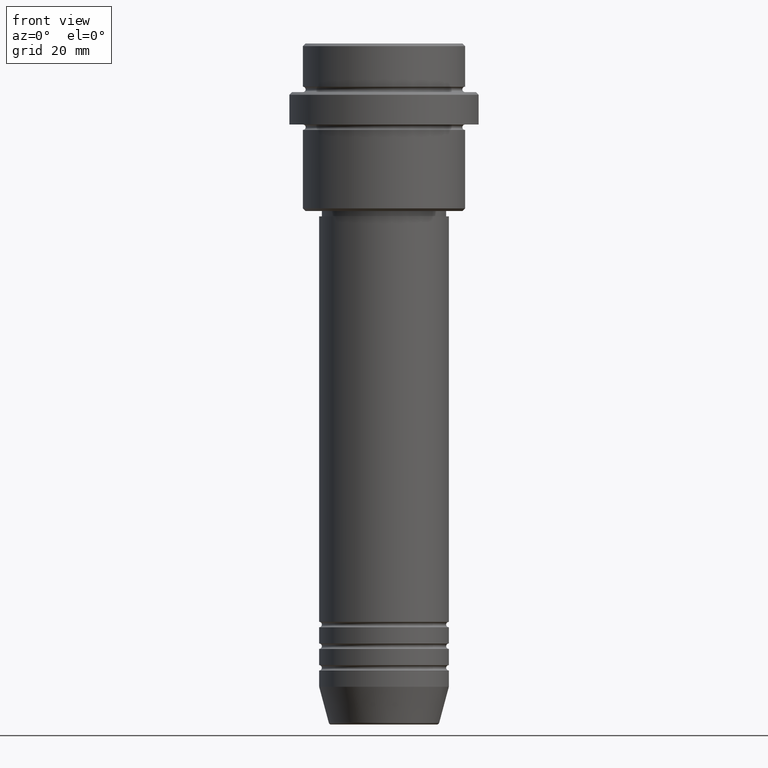
[diagram: clean part render]
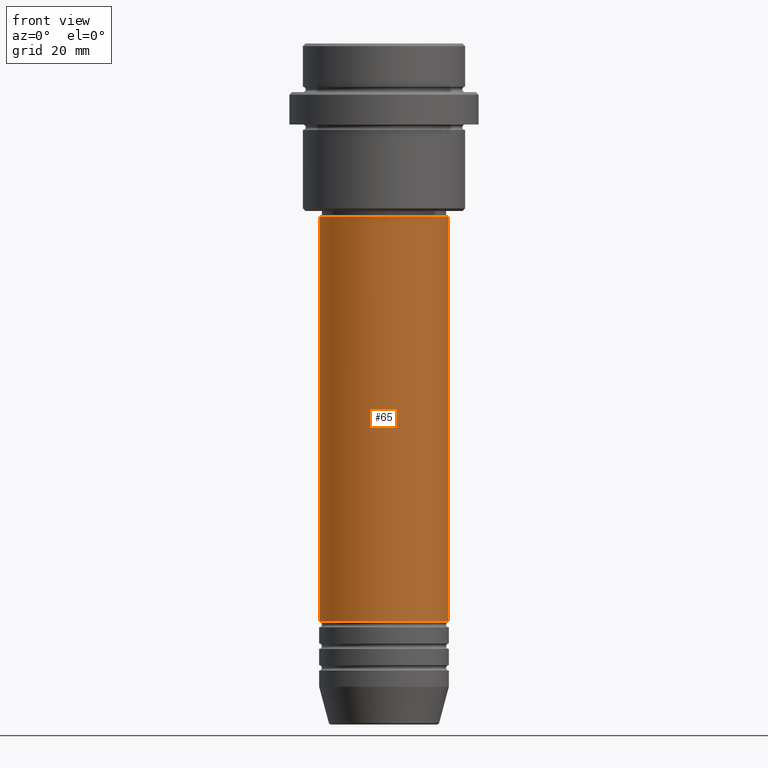
[diagram: same view with one face highlighted and labeled with its STEP entity id]
A machine part, front view. The second image highlights one B-rep face of the part: STEP entity #65.
In plain terms, the highlighted cylindrical surface (partial cylindrical patch) has radius 12 mm, axis along (-0, -0, 1).
Its self-contained STEP definition (entity closure, byte-faithful):
#4 = DIRECTION ( 'NONE',  ( -0.000000000000000000, -0.000000000000000000, 1.000000000000000000 ) ) ;
#15 = CARTESIAN_POINT ( 'NONE',  ( -12.00000000000000000, 1.469576158976823947E-15, -106.9999999999998721 ) ) ;
#65 = ADVANCED_FACE ( 'NONE', ( #81 ), #547, .T. ) ;
#81 = FACE_OUTER_BOUND ( 'NONE', #1058, .T. ) ;
#229 = EDGE_CURVE ( 'NONE', #549, #1059, #1244, .T. ) ;
#284 = CARTESIAN_POINT ( 'NONE',  ( 0.000000000000000000, 0.000000000000000000, -106.9999999999998721 ) ) ;
#292 = VERTEX_POINT ( 'NONE', #999 ) ;
#470 = ORIENTED_EDGE ( 'NONE', *, *, #229, .F. ) ;
#496 = CARTESIAN_POINT ( 'NONE',  ( 11.99999999999999822, 0.000000000000000000, -31.99999999999997868 ) ) ;
#526 = DIRECTION ( 'NONE',  ( 1.000000000000000000, 0.000000000000000000, 0.000000000000000000 ) ) ;
#536 = CARTESIAN_POINT ( 'NONE',  ( 12.00000000000000000, 0.000000000000000000, 0.000000000000000000 ) ) ;
#547 = CYLINDRICAL_SURFACE ( 'NONE', #1404, 12.00000000000000000 ) ;
#549 = VERTEX_POINT ( 'NONE', #1148 ) ;
#571 = DIRECTION ( 'NONE',  ( -0.000000000000000000, -0.000000000000000000, 1.000000000000000000 ) ) ;
#628 = CARTESIAN_POINT ( 'NONE',  ( 0.000000000000000000, 0.000000000000000000, 0.000000000000000000 ) ) ;
#642 = VECTOR ( 'NONE', #571, 1000.000000000000000 ) ;
#651 = CARTESIAN_POINT ( 'NONE',  ( -12.00000000000000000, 1.469576158976823947E-15, 0.000000000000000000 ) ) ;
#772 = AXIS2_PLACEMENT_3D ( 'NONE', #284, #1031, #1350 ) ;
#792 = CARTESIAN_POINT ( 'NONE',  ( 0.000000000000000000, 0.000000000000000000, -31.99999999999997868 ) ) ;
#811 = EDGE_CURVE ( 'NONE', #292, #1059, #1403, .T. ) ;
#900 = ORIENTED_EDGE ( 'NONE', *, *, #811, .T. ) ;
#903 = DIRECTION ( 'NONE',  ( 1.000000000000000000, 0.000000000000000000, 0.000000000000000000 ) ) ;
#922 = ORIENTED_EDGE ( 'NONE', *, *, #1282, .F. ) ;
#928 = VERTEX_POINT ( 'NONE', #15 ) ;
#955 = ORIENTED_EDGE ( 'NONE', *, *, #1162, .T. ) ;
#985 = LINE ( 'NONE', #651, #642 ) ;
#999 = CARTESIAN_POINT ( 'NONE',  ( 12.00000000000000000, 0.000000000000000000, -106.9999999999998721 ) ) ;
#1022 = AXIS2_PLACEMENT_3D ( 'NONE', #792, #4, #903 ) ;
#1031 = DIRECTION ( 'NONE',  ( -0.000000000000000000, -0.000000000000000000, 1.000000000000000000 ) ) ;
#1056 = DIRECTION ( 'NONE',  ( -0.000000000000000000, -0.000000000000000000, 1.000000000000000000 ) ) ;
#1058 = EDGE_LOOP ( 'NONE', ( #922, #955, #900, #470 ) ) ;
#1059 = VERTEX_POINT ( 'NONE', #496 ) ;
#1068 = CIRCLE ( 'NONE', #772, 12.00000000000000000 ) ;
#1074 = DIRECTION ( 'NONE',  ( -0.000000000000000000, -0.000000000000000000, 1.000000000000000000 ) ) ;
#1138 = VECTOR ( 'NONE', #1074, 1000.000000000000000 ) ;
#1148 = CARTESIAN_POINT ( 'NONE',  ( -11.99999999999999822, 1.469576158976823750E-15, -31.99999999999997868 ) ) ;
#1162 = EDGE_CURVE ( 'NONE', #928, #292, #1068, .T. ) ;
#1244 = CIRCLE ( 'NONE', #1022, 11.99999999999999822 ) ;
#1282 = EDGE_CURVE ( 'NONE', #928, #549, #985, .T. ) ;
#1350 = DIRECTION ( 'NONE',  ( 1.000000000000000000, 0.000000000000000000, 0.000000000000000000 ) ) ;
#1403 = LINE ( 'NONE', #536, #1138 ) ;
#1404 = AXIS2_PLACEMENT_3D ( 'NONE', #628, #1056, #526 ) ;